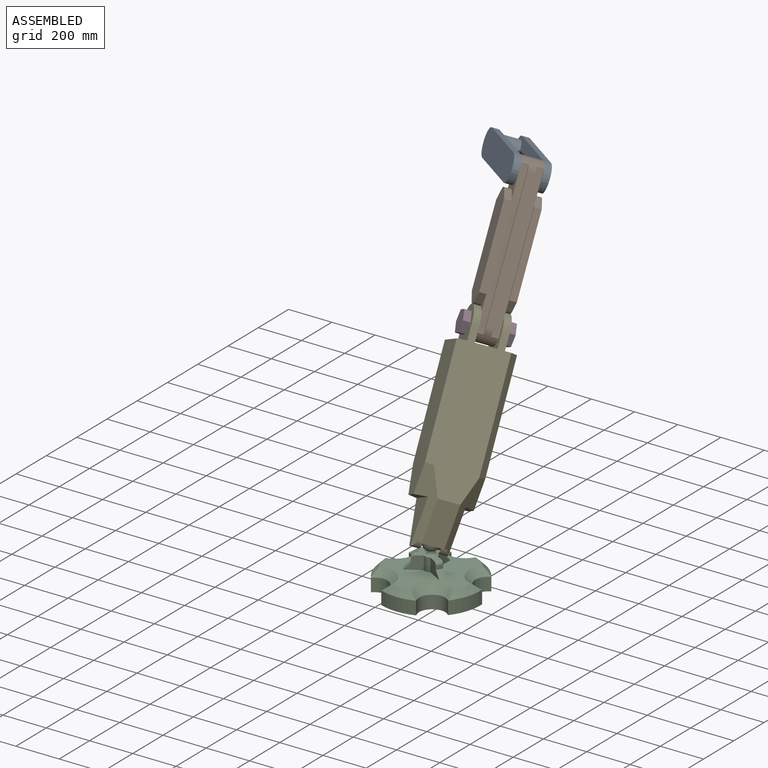
[diagram: assembled view]
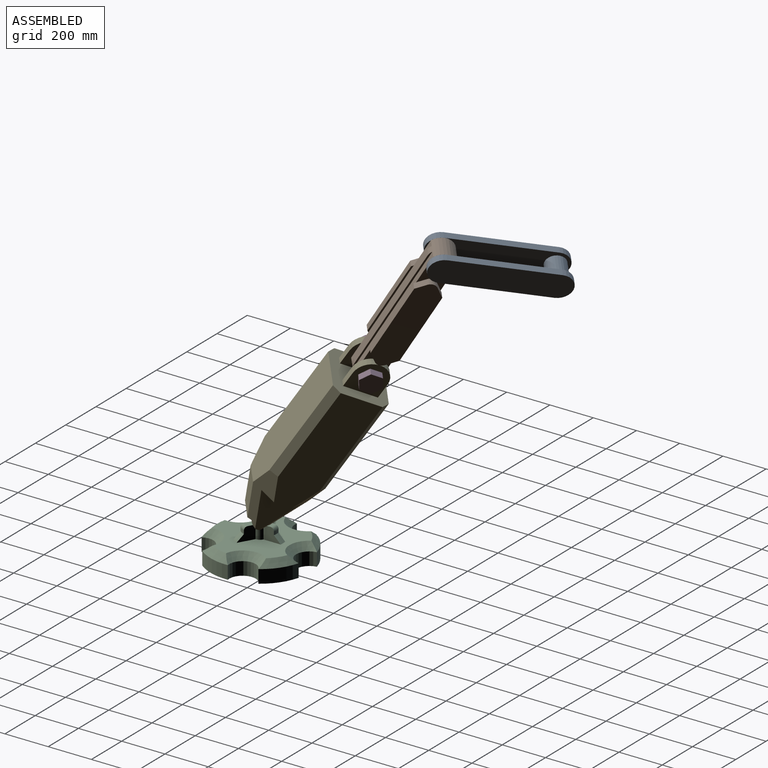
[diagram: assembled view, second angle]
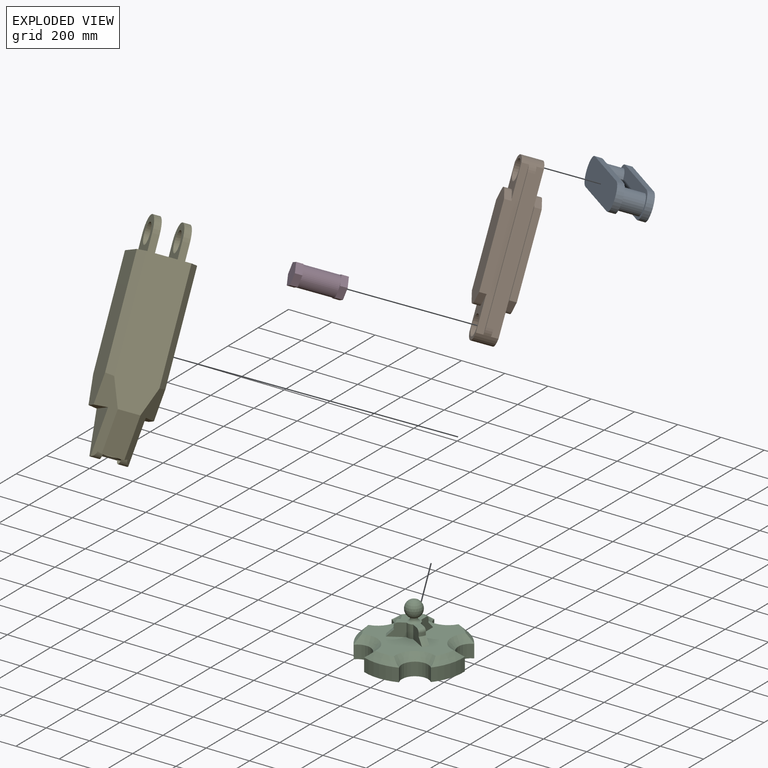
[diagram: exploded view]
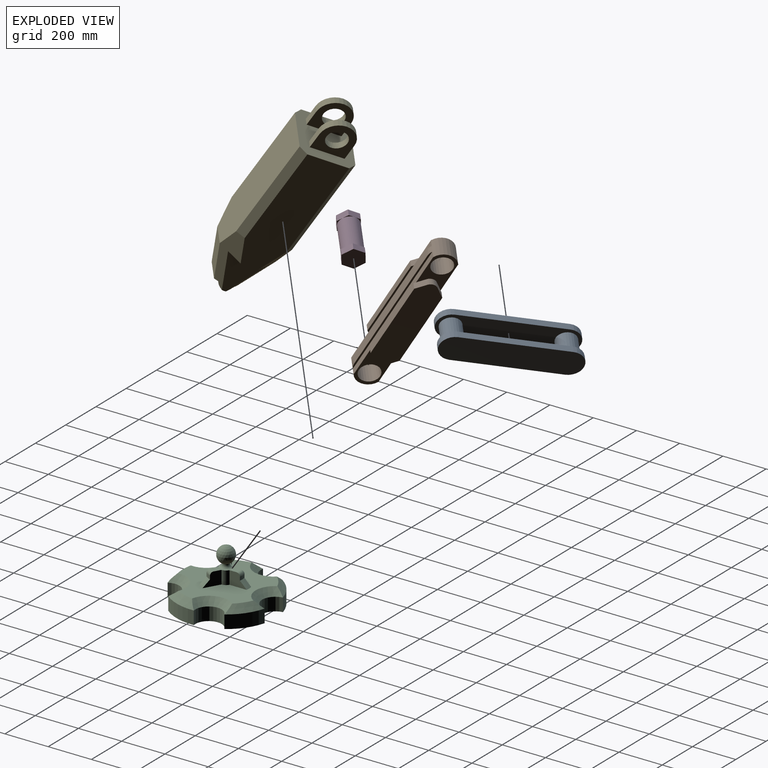
[diagram: exploded view, second angle]
ASSEMBLY  parts=5 mates=4
PART A: 14 faces, bbox 152.4x579.1x121.9 mm
  f0: plane 457.2x30.48mm, normal (0,0,1), area 13935.5mm2, adj f2,f3,f4,f8
  f1: plane 457.2x30.48mm, normal (0,0,-1), area 13935.5mm2, adj f2,f3,f4,f8
  f2: cylinder r=60.96mm len=121.92mm, axis (-1,0,0), area 5837.3mm2, adj f0,f1,f4,f8
  f3: cylinder r=60.96mm len=121.92mm, axis (-1,0,0), area 5837.3mm2, adj f0,f1,f4,f8
  f4: plane 579.12x121.92mm, normal (-1,0,0), area 67416.4mm2, adj f0,f1,f2,f3
  f5: cylinder r=45.72mm len=91.44mm, axis (-1,0,0), area 26267.7mm2, adj f7,f8
  f6: cylinder r=45.72mm len=91.44mm, axis (-1,0,0), area 26267.7mm2, adj f7,f8
  f7: plane 579.12x121.92mm, normal (-1,0,0), area 54282.5mm2, adj f5,f6,f10,f11,f12,f13
  f8: plane 579.12x121.92mm, normal (1,0,0), area 54282.5mm2, adj f0,f1,f2,f3,f5,f6
  f9: plane 579.12x121.92mm, normal (1,0,0), area 67416.4mm2, adj f10,f11,f12,f13
  f10: cylinder r=60.96mm len=121.92mm, axis (-1,0,0), area 5837.3mm2, adj f7,f9,f11,f13
  f11: plane 457.2x30.48mm, normal (0,0,-1), area 13935.5mm2, adj f7,f9,f10,f12
  f12: cylinder r=60.96mm len=121.92mm, axis (-1,0,0), area 5837.3mm2, adj f7,f9,f11,f13
  f13: plane 457.2x30.48mm, normal (0,0,1), area 13935.5mm2, adj f7,f9,f10,f12
PART B: 43 faces, bbox 152.4x731.5x121.9 mm
  f0: plane 609.6x30.48mm, normal (0,0,1), area 18580.6mm2, adj f6,f7,f28,f36
  f1: plane 358.36x30.48mm, normal (0,0,1), area 10922.9mm2, adj f17,f19,f20,f27
  f2: plane 365.76x30.48mm, normal (0,0,-1), area 11148.4mm2, adj f17,f18,f21,f34
  f3: plane 609.6x30.48mm, normal (0,0,-1), area 18580.6mm2, adj f6,f7,f31,f33
  f4: plane 178.96x106.68mm, normal (1,0,0), area 8714.9mm2, adj f6,f15,f22,f23,f32,f38,f42
  f5: plane 178.96x106.68mm, normal (-1,0,0), area 8714.9mm2, adj f6,f15,f20,f21,f29,f35,f39
  f6: cylinder r=60.96mm len=121.92mm, axis (-1,0,0), area 13755.8mm2, adj f0,f3,f4,f5,f28,f29,f31,f32
  f7: cylinder r=60.96mm len=121.92mm, axis (-1,0,0), area 13755.8mm2, adj f0,f3,f8,f9,f28,f29,f31,f32
  f8: plane 178.96x106.68mm, normal (1,0,0), area 8714.8mm2, adj f7,f10,f11,f13,f16,f24,f25,f32
  f9: plane 178.96x106.68mm, normal (-1,0,0), area 8714.8mm2, adj f7,f10,f11,f13,f16,f18,f19,f29
  f10: cylinder r=60.96mm len=91.44mm, axis (-1,0,0), area 349.3mm2, adj f8,f9,f11,f16
  f11: plane 91.44x3.7mm, normal (0,-1,0), area 338.1mm2, adj f8,f9,f10,f16
  f12: plane 358.36x30.48mm, normal (0,0,1), area 10922.9mm2, adj f23,f24,f26,f37
  f13: cylinder r=45.72mm len=91.44mm, axis (-1,0,0), area 26267.7mm2, adj f8,f9
  f14: plane 365.76x30.48mm, normal (0,0,-1), area 11148.4mm2, adj f22,f25,f26,f30
  f15: cylinder r=45.72mm len=91.44mm, axis (-1,0,0), area 26267.7mm2, adj f4,f5
  f16: plane 91.44x0.12mm, normal (0,-0.71,0.71), area 15.5mm2, adj f8,f9,f10,f11
  f17: plane 458.73x121.92mm, normal (-1,0,0), area 51169.3mm2, adj f1,f2,f18,f19,f20,f21,f39,f40
  f18: plane 37.56x37.56mm, normal (0,-0.71,-0.71), area 1619mm2, adj f2,f9,f17,f34,f40
  f19: plane 41.26x41.26mm, normal (0,-0.71,0.71), area 1778.4mm2, adj f1,f9,f17,f27,f40
  f20: plane 41.26x41.26mm, normal (0,0.71,0.71), area 1778.4mm2, adj f1,f5,f17,f27,f39
  f21: plane 37.56x37.56mm, normal (0,0.71,-0.71), area 1619mm2, adj f2,f5,f17,f34,f39
  f22: plane 37.56x37.56mm, normal (0,0.71,-0.71), area 1619mm2, adj f4,f14,f26,f30,f42
  f23: plane 41.26x41.26mm, normal (0,0.71,0.71), area 1778.4mm2, adj f4,f12,f26,f37,f42
  f24: plane 41.26x41.26mm, normal (0,-0.71,0.71), area 1778.4mm2, adj f8,f12,f26,f37,f41
  f25: plane 37.56x37.56mm, normal (0,-0.71,-0.71), area 1619mm2, adj f8,f14,f26,f30,f41
  f26: plane 458.73x121.92mm, normal (1,0,0), area 51169.3mm2, adj f12,f14,f22,f23,f24,f25,f41,f42
  f27: plane 373.6x7.62mm, normal (1,0,0), area 2788.8mm2, adj f1,f19,f20,f29
  f28: plane 668.62x7.62mm, normal (-1,0,0), area 4949mm2, adj f0,f6,f7,f29
  f29: plane 668.62x30.48mm, normal (0,0,1), area 20379.7mm2, adj f5,f6,f7,f9,f27,f28
  f30: plane 381x7.62mm, normal (-1,0,0), area 2845.2mm2, adj f14,f22,f25,f32
  f31: plane 668.62x7.62mm, normal (1,0,0), area 4949mm2, adj f3,f6,f7,f32
  f32: plane 668.62x30.48mm, normal (0,0,-1), area 20379.7mm2, adj f4,f6,f7,f8,f30,f31
  f33: plane 668.62x7.62mm, normal (-1,0,0), area 4949mm2, adj f3,f6,f7,f35
  f34: plane 381x7.62mm, normal (1,0,0), area 2845.2mm2, adj f2,f18,f21,f35
  f35: plane 668.62x30.48mm, normal (0,0,-1), area 20379.7mm2, adj f5,f6,f7,f9,f33,f34
  f36: plane 668.62x7.62mm, normal (1,0,0), area 4949mm2, adj f0,f6,f7,f38
  f37: plane 373.6x7.62mm, normal (-1,0,0), area 2788.8mm2, adj f12,f23,f24,f38
  f38: plane 668.62x30.48mm, normal (0,0,1), area 20379.7mm2, adj f4,f6,f7,f8,f36,f37
  f39: cylinder r=30.48mm len=43.11mm, axis (1,0,0), area 1459.3mm2, adj f5,f17,f20,f21
  f40: cylinder r=30.48mm len=43.11mm, axis (1,0,0), area 1459.3mm2, adj f9,f17,f18,f19
  f41: cylinder r=30.48mm len=43.11mm, axis (1,0,0), area 1459.3mm2, adj f8,f24,f25,f26
  f42: cylinder r=30.48mm len=43.11mm, axis (1,0,0), area 1459.3mm2, adj f4,f22,f23,f26
PART C: 46 faces, bbox 468.7x449.3x243.8 mm
  f0: cylinder r=76.2mm len=26.4mm, axis (0,0,-1), area 467.7mm2, adj f6,f36,f38,f43
  f1: cylinder r=76.2mm len=30.48mm, axis (0,0,-1), area 467.7mm2, adj f7,f9,f40,f44
  f2: cylinder r=76.2mm len=26.4mm, axis (0,0,-1), area 467.7mm2, adj f8,f10,f37,f41
  f3: plane 43.5x42.71mm, normal (0,0,1), area 949.8mm2, adj f35,f36,f38,f43
  f4: plane 34.56x30.48mm, normal (0,0,1), area 949.8mm2, adj f9,f35,f40,f44
  f5: plane 43.5x42.71mm, normal (0,0,1), area 949.8mm2, adj f10,f35,f37,f41
  f6: cone r=76.2mm half-angle=45deg, axis (0,0,-1), area 1320.2mm2, adj f0,f21,f38,f43
  f7: cone r=76.2mm half-angle=45deg, axis (0,0,-1), area 1320.2mm2, adj f1,f21,f40,f44
  f8: cone r=76.2mm half-angle=45deg, axis (0,0,-1), area 1320.2mm2, adj f2,f21,f37,f41
  f9: torus R=60.96mm, axis (0,0,1), area 735.5mm2, adj f1,f4,f40,f44
  f10: torus R=60.96mm, axis (0,0,1), area 735.5mm2, adj f2,f5,f37,f41
  f11: cylinder r=60.96mm len=121.11mm, axis (0,0,-1), area 10815.3mm2, adj f12,f20,f22,f30
  f12: cylinder r=228.6mm len=130.38mm, axis (0,0,-1), area 10040mm2, adj f11,f13,f22,f28
  f13: cylinder r=60.96mm len=116.38mm, axis (0,0,-1), area 10815.3mm2, adj f12,f14,f22,f26
  f14: cylinder r=228.6mm len=153.27mm, axis (0,0,-1), area 10040mm2, adj f13,f15,f22,f25
  f15: cylinder r=60.96mm len=105.82mm, axis (0,0,-1), area 10815.3mm2, adj f14,f16,f22,f27
  f16: cylinder r=228.6mm len=161.16mm, axis (0,0,-1), area 10040mm2, adj f15,f17,f22,f29
  f17: cylinder r=60.96mm len=105.82mm, axis (0,0,-1), area 10815.3mm2, adj f16,f18,f22,f31
  f18: cylinder r=228.6mm len=153.27mm, axis (0,0,-1), area 10040mm2, adj f17,f19,f22,f33
  f19: cylinder r=60.96mm len=116.38mm, axis (0,0,-1), area 10815.3mm2, adj f18,f20,f22,f34
  f20: cylinder r=228.6mm len=130.38mm, axis (0,0,-1), area 10040mm2, adj f11,f19,f22,f32
  f21: plane 394.39x379.75mm, normal (0,0,1), area 78979mm2, adj f6,f7,f8,f25,f26,f27,f28,f29
  f22: plane 457.2x449.03mm, normal (0,0,-1), area 135955.6mm2, adj f11,f12,f13,f14,f15,f16,f17,f18
  f23: cylinder r=15.24mm len=30.48mm, axis (0,0,-1), area 304.6mm2, adj f24,f35
  f24: sphere r=38.1mm, area 17480mm2, adj f23
  f25: cone r=198.12mm half-angle=45deg, axis (0,0,-1), area 5318.1mm2, adj f14,f21,f26,f27
  f26: cone r=60.96mm half-angle=45deg, axis (0,0,1), area 7976.3mm2, adj f13,f21,f25,f28
  f27: cone r=60.96mm half-angle=45deg, axis (0,0,1), area 7976.3mm2, adj f15,f21,f25,f29
  f28: cone r=198.12mm half-angle=45deg, axis (0,0,-1), area 5318.1mm2, adj f12,f21,f26,f30
  f29: cone r=198.12mm half-angle=45deg, axis (0,0,-1), area 5318.1mm2, adj f16,f21,f27,f31
  f30: cone r=60.96mm half-angle=45deg, axis (0,0,1), area 7976.3mm2, adj f11,f21,f28,f32
  f31: cone r=60.96mm half-angle=45deg, axis (0,0,1), area 7976.3mm2, adj f17,f21,f29,f33
  f32: cone r=198.12mm half-angle=45deg, axis (0,0,-1), area 5318.1mm2, adj f20,f21,f30,f34
  f33: cone r=198.12mm half-angle=45deg, axis (0,0,-1), area 5318.1mm2, adj f18,f21,f31,f34
  f34: cone r=60.96mm half-angle=45deg, axis (0,0,1), area 7976.3mm2, adj f19,f21,f32,f33
  f35: torus R=30.48mm, axis (0,0,1), area 3125.3mm2, adj f3,f4,f5,f23,f39,f42,f45
  f36: torus R=60.96mm, axis (0,0,1), area 735.5mm2, adj f0,f3,f38,f43
  f37: plane 68.58x60.96mm, normal (-0.5,-0.87,0), area 3363.3mm2, adj f2,f5,f8,f10,f21,f39
  f38: plane 68.58x60.96mm, normal (0.5,-0.87,0), area 3363.3mm2, adj f0,f3,f6,f21,f36,f39
  f39: cylinder r=30.48mm len=60.96mm, axis (0,0,1), area 1945.8mm2, adj f21,f35,f37,f38
  f40: plane 79.19x60.96mm, normal (1,0,0), area 3363.3mm2, adj f1,f4,f7,f9,f21,f42
  f41: plane 68.58x60.96mm, normal (0.5,0.87,0), area 3363.3mm2, adj f2,f5,f8,f10,f21,f42
  f42: cylinder r=30.48mm len=60.96mm, axis (0,0,1), area 1945.8mm2, adj f21,f35,f40,f41
  f43: plane 68.58x60.96mm, normal (-0.5,0.87,0), area 3363.3mm2, adj f0,f3,f6,f21,f36,f45
  f44: plane 79.19x60.96mm, normal (-1,0,0), area 3363.3mm2, adj f1,f4,f7,f9,f21,f45
  f45: cylinder r=30.48mm len=60.96mm, axis (0,0,1), area 1945.8mm2, adj f21,f35,f43,f44
PART D: 27 faces, bbox 213.4x105.6x91.4 mm
  f0: cylinder r=45.72mm len=152.4mm, axis (-1,0,0), area 43779.5mm2, adj f1,f2,f3,f4,f5,f6,f14,f15
  f1: plane 39.59x22.86mm, normal (-1,0,0), area 112.4mm2, adj f0,f7,f8
  f2: plane 45.72x13.2mm, normal (-1,0,0), area 112.4mm2, adj f0,f8,f9
  f3: plane 39.59x22.86mm, normal (-1,0,0), area 112.4mm2, adj f0,f9,f10
  f4: plane 39.59x22.86mm, normal (-1,0,0), area 112.4mm2, adj f0,f10,f11
  f5: plane 45.72x13.2mm, normal (-1,0,0), area 112.4mm2, adj f0,f11,f12
  f6: plane 39.59x22.86mm, normal (-1,0,0), area 112.4mm2, adj f0,f7,f12
  f7: plane 52.79x30.48mm, normal (0,0,-1), area 1609.1mm2, adj f1,f6,f8,f12,f13
  f8: plane 45.72x30.48mm, normal (0,0.87,-0.5), area 1609.1mm2, adj f1,f2,f7,f9,f13
  f9: plane 45.72x30.48mm, normal (0,0.87,0.5), area 1609.1mm2, adj f2,f3,f8,f10,f13
  f10: plane 52.79x30.48mm, normal (0,0,1), area 1609.1mm2, adj f3,f4,f9,f11,f13
  f11: plane 45.72x30.48mm, normal (0,-0.87,0.5), area 1609.1mm2, adj f4,f5,f10,f12,f13
  f12: plane 45.72x30.48mm, normal (0,-0.87,-0.5), area 1609.1mm2, adj f5,f6,f7,f11,f13
  f13: plane 105.59x91.44mm, normal (1,0,0), area 7241.1mm2, adj f7,f8,f9,f10,f11,f12
  f14: plane 39.59x22.86mm, normal (1,0,0), area 112.4mm2, adj f0,f20,f21
  f15: plane 45.72x13.2mm, normal (1,0,0), area 112.4mm2, adj f0,f21,f22
  f16: plane 39.59x22.86mm, normal (1,0,0), area 112.4mm2, adj f0,f22,f23
  f17: plane 39.59x22.86mm, normal (1,0,0), area 112.4mm2, adj f0,f23,f24
  f18: plane 45.72x13.2mm, normal (1,0,0), area 112.4mm2, adj f0,f24,f25
  f19: plane 39.59x22.86mm, normal (1,0,0), area 112.4mm2, adj f0,f20,f25
  f20: plane 52.79x30.48mm, normal (0,0,-1), area 1609.1mm2, adj f14,f19,f21,f25,f26
  f21: plane 45.72x30.48mm, normal (0,0.87,-0.5), area 1609.1mm2, adj f14,f15,f20,f22,f26
  f22: plane 45.72x30.48mm, normal (0,0.87,0.5), area 1609.1mm2, adj f15,f16,f21,f23,f26
  f23: plane 52.79x30.48mm, normal (0,0,1), area 1609.1mm2, adj f16,f17,f22,f24,f26
  f24: plane 45.72x30.48mm, normal (0,-0.87,0.5), area 1609.1mm2, adj f17,f18,f23,f25,f26
  f25: plane 45.72x30.48mm, normal (0,-0.87,-0.5), area 1609.1mm2, adj f18,f19,f20,f24,f26
  f26: plane 105.59x91.44mm, normal (-1,0,0), area 7241.1mm2, adj f20,f21,f22,f23,f24,f25
PART E: 40 faces, bbox 243.8x243.8x952.6 mm
  f0: plane 152.4x152.4mm, normal (-1,0,0), area 14166.7mm2, adj f4,f6,f8,f37,f39
  f1: plane 152.4x152.4mm, normal (1,0,0), area 14166.7mm2, adj f4,f6,f8,f37,f39
  f2: plane 152.4x152.4mm, normal (-1,0,0), area 14166.7mm2, adj f5,f7,f8,f36,f38
  f3: plane 152.4x152.4mm, normal (1,0,0), area 14166.7mm2, adj f5,f7,f8,f36,f38
  f4: plane 76.2x30.48mm, normal (0,-1,0), area 2322.6mm2, adj f0,f1,f8,f37
  f5: plane 76.2x30.48mm, normal (0,-1,0), area 2322.6mm2, adj f2,f3,f8,f36
  f6: plane 76.2x30.48mm, normal (0,1,0), area 2322.6mm2, adj f0,f1,f8,f37
  f7: plane 76.2x30.48mm, normal (0,1,0), area 2322.6mm2, adj f2,f3,f8,f36
  f8: plane 243.84x243.84mm, normal (0,0,1), area 48309.6mm2, adj f0,f1,f2,f3,f4,f5,f6,f7
  f9: cylinder r=38.1mm len=76.2mm, axis (1,0,0), area 2941.3mm2, adj f17,f19,f22,f23,f26,f27,f28
  f10: plane 177.71x45.72mm, normal (0,0,-1), area 5857.6mm2, adj f15,f21,f24,f25
  f11: plane 609.6x182.88mm, normal (0,-1,0), area 106089.2mm2, adj f8,f16,f23,f24,f32,f34
  f12: plane 177.71x45.72mm, normal (0,0,-1), area 5857.6mm2, adj f14,f22,f23,f26
  f13: plane 609.6x182.88mm, normal (0,1,0), area 106089.2mm2, adj f8,f20,f25,f26,f33,f35
  f14: plane 609.6x182.88mm, normal (1,0,0), area 105006.6mm2, adj f8,f12,f23,f26,f32,f33
  f15: plane 609.6x182.88mm, normal (-1,0,0), area 105006.6mm2, adj f8,f10,f24,f25,f34,f35
  f16: plane 173.07x91.44mm, normal (0,-0.92,-0.39), area 17166.6mm2, adj f11,f17,f23,f24
  f17: plane 121.92x14.05mm, normal (0,0.39,-0.92), area 1625.8mm2, adj f9,f16,f18,f23,f24
  f18: cylinder r=38.1mm len=76.2mm, axis (1,0,0), area 2941.3mm2, adj f17,f19,f21,f24,f25,f29,f30
  f19: plane 121.92x14.05mm, normal (0,-0.39,-0.92), area 1625.8mm2, adj f9,f18,f20,f25,f26
  f20: plane 173.07x91.44mm, normal (0,0.92,-0.39), area 17166.6mm2, adj f13,f19,f25,f26
  f21: plane 190.5x177.71mm, normal (-1,0,0), area 18593.8mm2, adj f10,f18,f24,f25
  f22: plane 190.5x177.71mm, normal (1,0,0), area 18593.8mm2, adj f9,f12,f23,f26
  f23: plane 313.49x112.66mm, normal (0.71,-0.65,-0.27), area 18073.7mm2, adj f9,f11,f12,f14,f16,f17,f22,f32
  f24: plane 313.49x112.66mm, normal (-0.71,-0.65,-0.27), area 18073.7mm2, adj f10,f11,f15,f16,f17,f18,f21,f34
  f25: plane 313.49x112.66mm, normal (-0.71,0.65,-0.27), area 18073.7mm2, adj f10,f13,f15,f18,f19,f20,f21,f35
  f26: plane 313.49x112.66mm, normal (0.71,0.65,-0.27), area 18073.7mm2, adj f9,f12,f13,f14,f19,f20,f22,f33
  f27: sphere r=53.34mm, area 988.1mm2, adj f9,f28
  f28: cone r=49.17mm half-angle=67.2deg, axis (0,0,-1), area 1222.9mm2, adj f9,f27,f31
  f29: sphere r=53.34mm, area 988.1mm2, adj f18,f30
  f30: cone r=49.17mm half-angle=67.2deg, axis (0,0,-1), area 1222.9mm2, adj f18,f29,f31
  f31: sphere r=38.1mm, area 12655mm2, adj f28,f30
  f32: plane 491.61x30.48mm, normal (0.71,-0.71,0), area 21058.6mm2, adj f8,f11,f14,f23
  f33: plane 491.61x30.48mm, normal (0.71,0.71,0), area 21058.6mm2, adj f8,f13,f14,f26
  f34: plane 491.61x30.48mm, normal (-0.71,-0.71,0), area 21058.6mm2, adj f8,f11,f15,f24
  f35: plane 491.61x30.48mm, normal (-0.71,0.71,0), area 21058.6mm2, adj f8,f13,f15,f25
  f36: cylinder r=76.2mm len=152.4mm, axis (1,0,0), area 7296.6mm2, adj f2,f3,f5,f7
  f37: cylinder r=76.2mm len=152.4mm, axis (1,0,0), area 7296.6mm2, adj f0,f1,f4,f6
  f38: cylinder r=45.72mm len=91.44mm, axis (1,0,0), area 8755.9mm2, adj f2,f3
  f39: cylinder r=45.72mm len=91.44mm, axis (1,0,0), area 8755.9mm2, adj f0,f1
PLACE A rot(axis=(0.36,-0.92,0.17),166.5deg) t=(-253.42,927.16,1377.07)mm
PLACE B rot(axis=(0.22,-0.86,-0.47),142.7deg) t=(-94.26,770.92,1427.21)mm
PLACE C at identity fixed
PLACE D rot(axis=(-0.08,-0.3,-0.95),136.2deg) t=(-65.18,455.13,906.59)mm
PLACE E rot(axis=(-0.08,-0.3,-0.95),136.2deg) t=(-59.26,413.75,842.87)mm
MATE revolute A.f2 <-> B.f6  axis (0.71,0.62,-0.33) through (-94.26,770.92,1427.21)mm
MATE revolute B.f7 <-> D.f0  axis (0.71,0.62,-0.33) through (-65.18,455.13,906.59)mm
MATE fastened D.f0 <-> E.f36  axis (0.71,0.62,-0.33) through (-119.41,408.07,932.1)mm
MATE ball E.f28 <-> C.f14  axis (-0.08,0.54,0.84) through (0,0,205.74)mm
